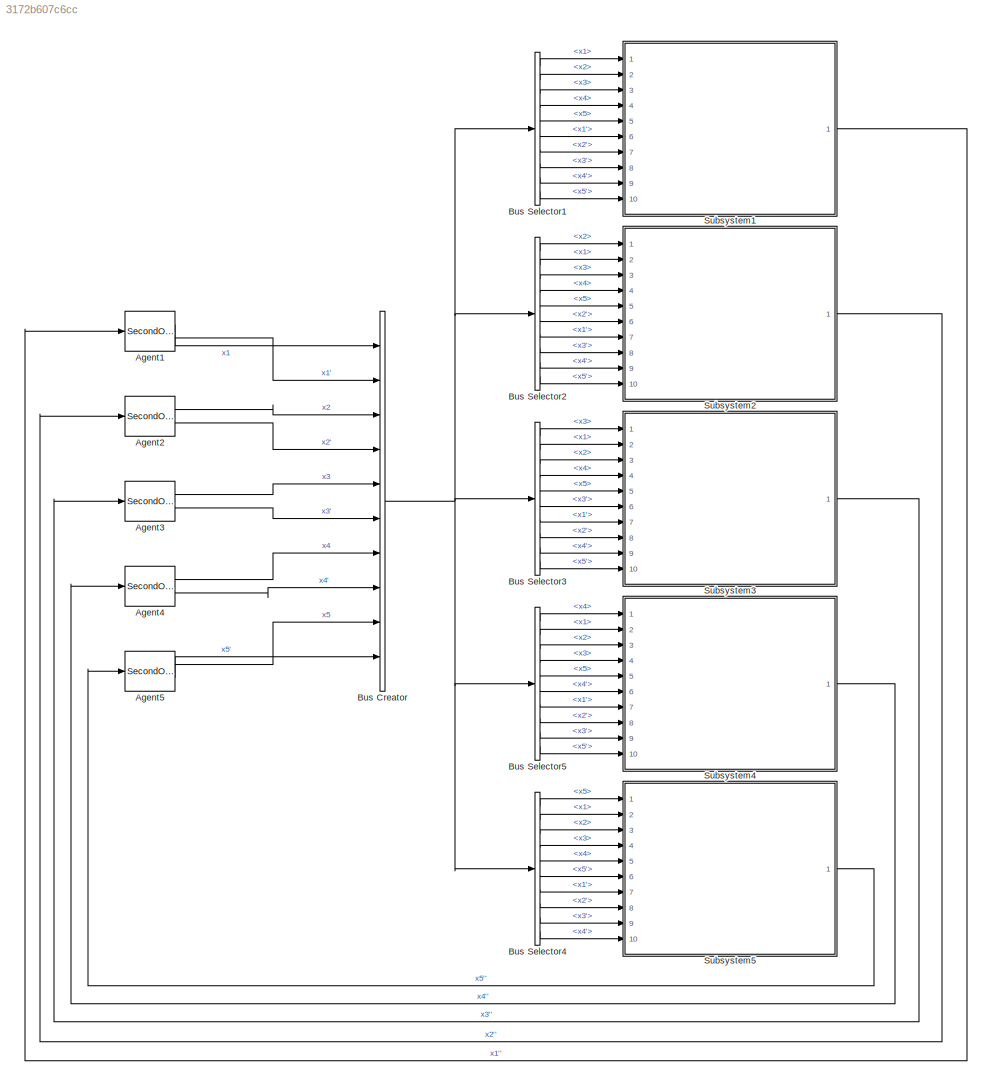
MODEL slx_3172b607c6cc
KIND model
CONFIG AbsTol = auto
CONFIG EnableMultiTasking = off
CONFIG FixedStep = auto
CONFIG MaxStep = auto
CONFIG MinStep = auto
CONFIG RelTol = 1e-3
CONFIG SampleTimeConstraint = Unconstrained
CONFIG Solver = VariableStepAuto
CONFIG SolverName = VariableStepAuto
CONFIG StartTime = 0.0
CONFIG StopTime = 100
BLOCK [SecondOrderIntegrator] Agent1
  ICDXDT = 4
  ICX = 100
  Ports = [1, 2]
BLOCK [SecondOrderIntegrator] Agent2
  ICDXDT = 8
  ICX = 150
  Ports = [1, 2]
BLOCK [SecondOrderIntegrator] Agent3
  ICDXDT = 15
  ICX = 250
  Ports = [1, 2]
BLOCK [SecondOrderIntegrator] Agent4
  ICDXDT = 10
  ICX = 200
  Ports = [1, 2]
BLOCK [SecondOrderIntegrator] Agent5
  ICDXDT = 7
  ICX = 300
  Ports = [1, 2]
BLOCK [BusCreator] Bus Creator
  DisplayOption = bar
  InheritFromInputs = on
  Inputs = 10
  Ports = [10, 1]
BLOCK [BusSelector] Bus Selector1
  OutputAsBus = off
  OutputSignals = x1,x2,x3,x4,x5,x1',x2',x3',x4',x5'
  Ports = [1, 10]
BLOCK [BusSelector] Bus Selector2
  OutputAsBus = off
  OutputSignals = x2,x1,x3,x4,x5,x2',x1',x3',x4',x5'
  Ports = [1, 10]
BLOCK [BusSelector] Bus Selector3
  OutputAsBus = off
  OutputSignals = x3,x1,x2,x4,x5,x3',x1',x2',x4',x5'
  Ports = [1, 10]
BLOCK [BusSelector] Bus Selector4
  OutputAsBus = off
  OutputSignals = x5,x1,x2,x3,x4,x5',x1',x2',x3',x4'
  Ports = [1, 10]
BLOCK [BusSelector] Bus Selector5
  OutputAsBus = off
  OutputSignals = x4,x1,x2,x3,x5,x4',x1',x2',x3',x5'
  Ports = [1, 10]
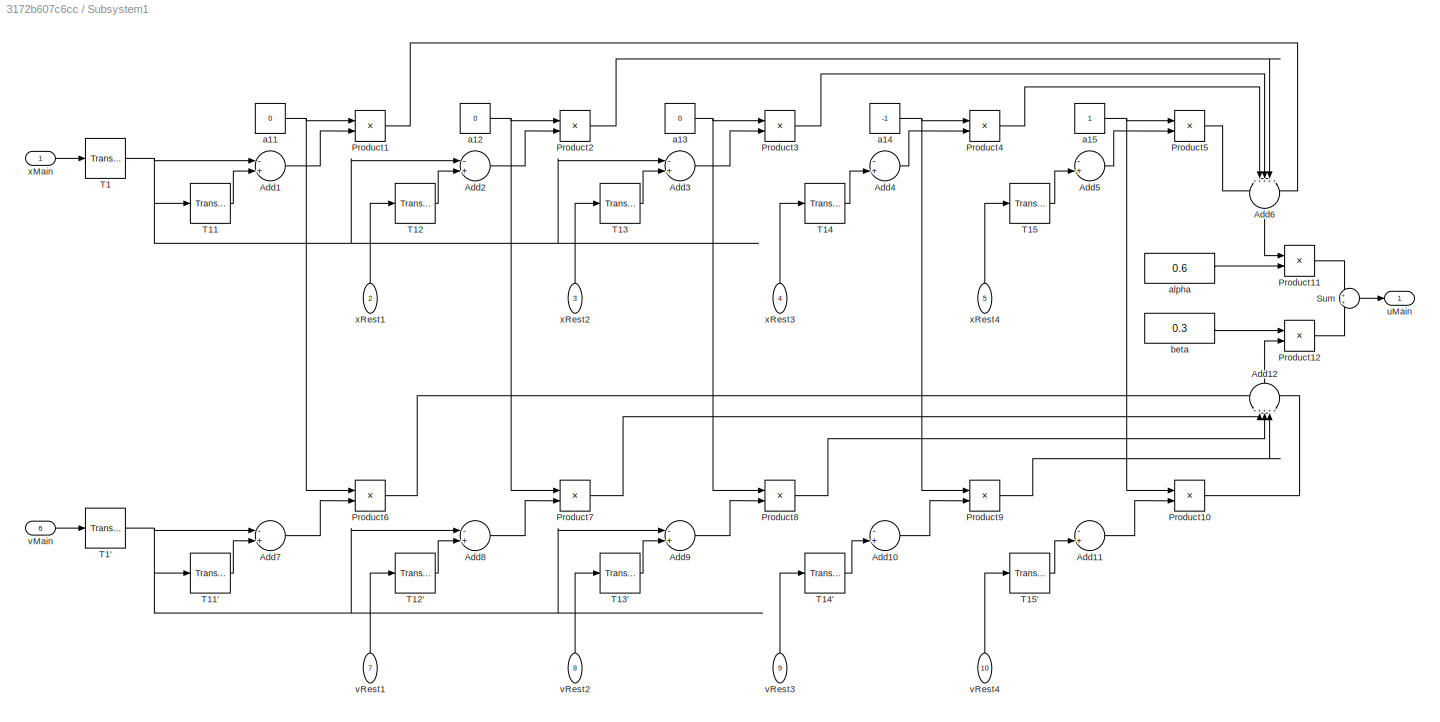
BLOCK [SubSystem] Subsystem1
  Ports = [10, 1]
  RequestExecContextInheritance = off
BLOCK [Sum] Subsystem1/Add1
  InputSameDT = off
  Inputs = -+
  OutDataTypeStr = Inherit: Inherit via internal rule
  Ports = [2, 1]
  SaturateOnIntegerOverflow = off
BLOCK [Sum] Subsystem1/Add10
  InputSameDT = off
  Inputs = -+
  OutDataTypeStr = Inherit: Inherit via internal rule
  Ports = [2, 1]
  SaturateOnIntegerOverflow = off
BLOCK [Sum] Subsystem1/Add11
  InputSameDT = off
  Inputs = -+
  OutDataTypeStr = Inherit: Inherit via internal rule
  Ports = [2, 1]
  SaturateOnIntegerOverflow = off
BLOCK [Sum] Subsystem1/Add12
  IconShape = round
  InputSameDT = off
  Inputs = +++++
  OutDataTypeStr = Inherit: Inherit via internal rule
  Ports = [5, 1]
  SaturateOnIntegerOverflow = off
BLOCK [Sum] Subsystem1/Add2
  InputSameDT = off
  Inputs = -+
  OutDataTypeStr = Inherit: Inherit via internal rule
  Ports = [2, 1]
  SaturateOnIntegerOverflow = off
BLOCK [Sum] Subsystem1/Add3
  InputSameDT = off
  Inputs = -+
  OutDataTypeStr = Inherit: Inherit via internal rule
  Ports = [2, 1]
  SaturateOnIntegerOverflow = off
BLOCK [Sum] Subsystem1/Add4
  InputSameDT = off
  Inputs = -+
  OutDataTypeStr = Inherit: Inherit via internal rule
  Ports = [2, 1]
  SaturateOnIntegerOverflow = off
BLOCK [Sum] Subsystem1/Add5
  InputSameDT = off
  Inputs = -+
  OutDataTypeStr = Inherit: Inherit via internal rule
  Ports = [2, 1]
  SaturateOnIntegerOverflow = off
BLOCK [Sum] Subsystem1/Add6
  IconShape = round
  InputSameDT = off
  Inputs = +++++
  OutDataTypeStr = Inherit: Inherit via internal rule
  Ports = [5, 1]
  SaturateOnIntegerOverflow = off
BLOCK [Sum] Subsystem1/Add7
  InputSameDT = off
  Inputs = -+
  OutDataTypeStr = Inherit: Inherit via internal rule
  Ports = [2, 1]
  SaturateOnIntegerOverflow = off
BLOCK [Sum] Subsystem1/Add8
  InputSameDT = off
  Inputs = -+
  OutDataTypeStr = Inherit: Inherit via internal rule
  Ports = [2, 1]
  SaturateOnIntegerOverflow = off
BLOCK [Sum] Subsystem1/Add9
  InputSameDT = off
  Inputs = -+
  OutDataTypeStr = Inherit: Inherit via internal rule
  Ports = [2, 1]
  SaturateOnIntegerOverflow = off
BLOCK [Product] Subsystem1/Product1
  InputSameDT = off
  OutDataTypeStr = Inherit: Inherit via internal rule
  Ports = [2, 1]
  RndMeth = Floor
  SaturateOnIntegerOverflow = off
BLOCK [Product] Subsystem1/Product10
  InputSameDT = off
  OutDataTypeStr = Inherit: Inherit via internal rule
  Ports = [2, 1]
  RndMeth = Floor
  SaturateOnIntegerOverflow = off
BLOCK [Product] Subsystem1/Product11
  InputSameDT = off
  OutDataTypeStr = Inherit: Inherit via internal rule
  Ports = [2, 1]
  RndMeth = Floor
  SaturateOnIntegerOverflow = off
BLOCK [Product] Subsystem1/Product12
  InputSameDT = off
  OutDataTypeStr = Inherit: Inherit via internal rule
  Ports = [2, 1]
  RndMeth = Floor
  SaturateOnIntegerOverflow = off
BLOCK [Product] Subsystem1/Product2
  InputSameDT = off
  OutDataTypeStr = Inherit: Inherit via internal rule
  Ports = [2, 1]
  RndMeth = Floor
  SaturateOnIntegerOverflow = off
BLOCK [Product] Subsystem1/Product3
  InputSameDT = off
  OutDataTypeStr = Inherit: Inherit via internal rule
  Ports = [2, 1]
  RndMeth = Floor
  SaturateOnIntegerOverflow = off
BLOCK [Product] Subsystem1/Product4
  InputSameDT = off
  OutDataTypeStr = Inherit: Inherit via internal rule
  Ports = [2, 1]
  RndMeth = Floor
  SaturateOnIntegerOverflow = off
BLOCK [Product] Subsystem1/Product5
  InputSameDT = off
  OutDataTypeStr = Inherit: Inherit via internal rule
  Ports = [2, 1]
  RndMeth = Floor
  SaturateOnIntegerOverflow = off
BLOCK [Product] Subsystem1/Product6
  InputSameDT = off
  OutDataTypeStr = Inherit: Inherit via internal rule
  Ports = [2, 1]
  RndMeth = Floor
  SaturateOnIntegerOverflow = off
BLOCK [Product] Subsystem1/Product7
  InputSameDT = off
  OutDataTypeStr = Inherit: Inherit via internal rule
  Ports = [2, 1]
  RndMeth = Floor
  SaturateOnIntegerOverflow = off
BLOCK [Product] Subsystem1/Product8
  InputSameDT = off
  OutDataTypeStr = Inherit: Inherit via internal rule
  Ports = [2, 1]
  RndMeth = Floor
  SaturateOnIntegerOverflow = off
BLOCK [Product] Subsystem1/Product9
  InputSameDT = off
  OutDataTypeStr = Inherit: Inherit via internal rule
  Ports = [2, 1]
  RndMeth = Floor
  SaturateOnIntegerOverflow = off
BLOCK [Sum] Subsystem1/Sum
  IconShape = round
  InputSameDT = off
  OutDataTypeStr = Inherit: Inherit via internal rule
  Ports = [2, 1]
  SaturateOnIntegerOverflow = off
BLOCK [TransportDelay] Subsystem1/T1
  DelayTime = 0
  Ports = [1, 1]
BLOCK [TransportDelay] Subsystem1/T1'
  DelayTime = 0
  Ports = [1, 1]
BLOCK [TransportDelay] Subsystem1/T11
  DelayTime = 0
  Ports = [1, 1]
BLOCK [TransportDelay] Subsystem1/T11'
  DelayTime = 0
  Ports = [1, 1]
BLOCK [TransportDelay] Subsystem1/T12
  DelayTime = 0
  Ports = [1, 1]
BLOCK [TransportDelay] Subsystem1/T12'
  DelayTime = 0
  Ports = [1, 1]
BLOCK [TransportDelay] Subsystem1/T13
  DelayTime = 0
  Ports = [1, 1]
BLOCK [TransportDelay] Subsystem1/T13'
  DelayTime = 0
  Ports = [1, 1]
BLOCK [TransportDelay] Subsystem1/T14
  DelayTime = 0
  Ports = [1, 1]
BLOCK [TransportDelay] Subsystem1/T14'
  DelayTime = 0
  Ports = [1, 1]
BLOCK [TransportDelay] Subsystem1/T15
  DelayTime = 0
  Ports = [1, 1]
BLOCK [TransportDelay] Subsystem1/T15'
  DelayTime = 0
  Ports = [1, 1]
BLOCK [Constant] Subsystem1/a11
  Value = 0
BLOCK [Constant] Subsystem1/a12
  Value = 0
BLOCK [Constant] Subsystem1/a13
  Value = 0
BLOCK [Constant] Subsystem1/a14
  Value = -1
BLOCK [Constant] Subsystem1/a15
BLOCK [Constant] Subsystem1/alpha
  Value = 0.6
BLOCK [Constant] Subsystem1/beta
  Value = 0.3
BLOCK [Outport] Subsystem1/uMain
  IconDisplay = Port number
BLOCK [Inport] Subsystem1/vMain
  IconDisplay = Port number
  Port = 6
BLOCK [Inport] Subsystem1/vRest1
  IconDisplay = Port number
  Port = 7
BLOCK [Inport] Subsystem1/vRest2
  IconDisplay = Port number
  Port = 8
BLOCK [Inport] Subsystem1/vRest3
  IconDisplay = Port number
  Port = 9
BLOCK [Inport] Subsystem1/vRest4
  IconDisplay = Port number
  Port = 10
BLOCK [Inport] Subsystem1/xMain
  IconDisplay = Port number
BLOCK [Inport] Subsystem1/xRest1
  IconDisplay = Port number
  Port = 2
BLOCK [Inport] Subsystem1/xRest2
  IconDisplay = Port number
  Port = 3
BLOCK [Inport] Subsystem1/xRest3
  IconDisplay = Port number
  Port = 4
BLOCK [Inport] Subsystem1/xRest4
  IconDisplay = Port number
  Port = 5
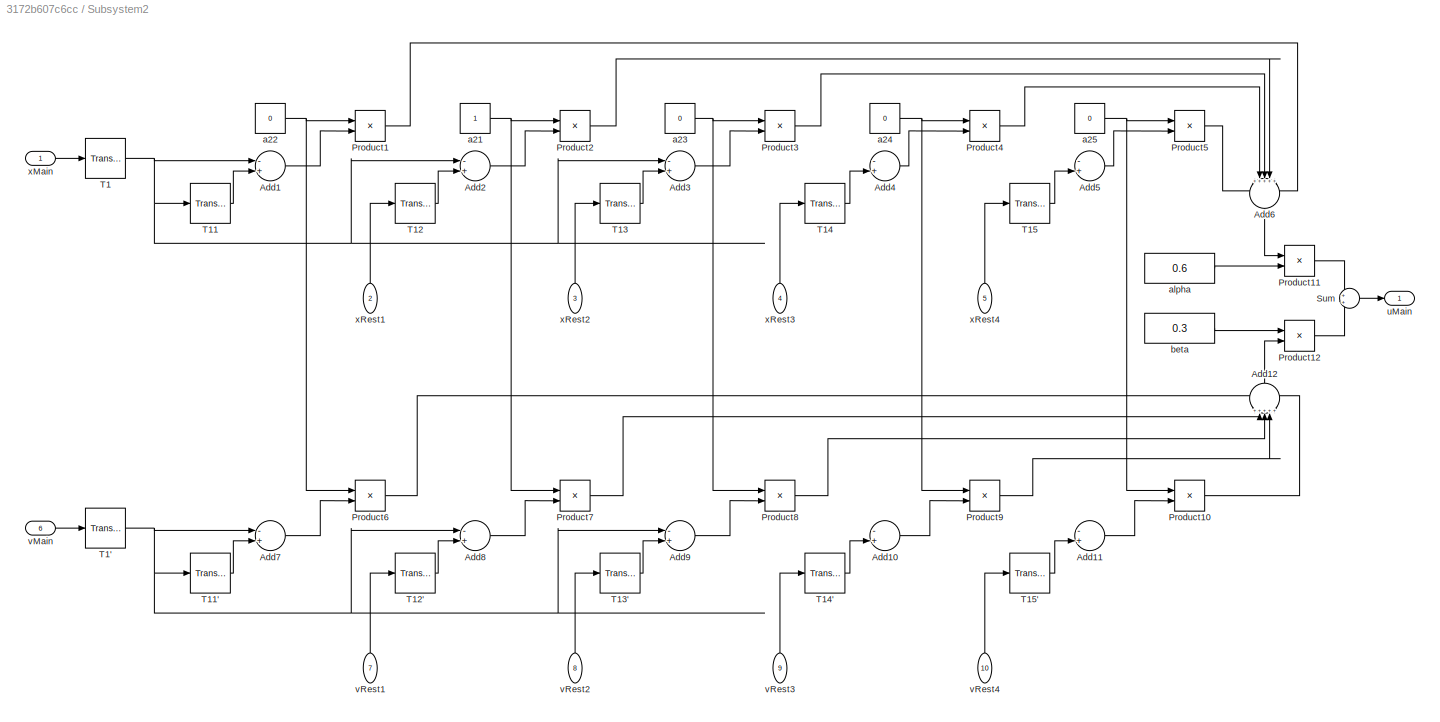
BLOCK [SubSystem] Subsystem2
  Ports = [10, 1]
  RequestExecContextInheritance = off
BLOCK [Sum] Subsystem2/Add1
  InputSameDT = off
  Inputs = -+
  OutDataTypeStr = Inherit: Inherit via internal rule
  Ports = [2, 1]
  SaturateOnIntegerOverflow = off
BLOCK [Sum] Subsystem2/Add10
  InputSameDT = off
  Inputs = -+
  OutDataTypeStr = Inherit: Inherit via internal rule
  Ports = [2, 1]
  SaturateOnIntegerOverflow = off
BLOCK [Sum] Subsystem2/Add11
  InputSameDT = off
  Inputs = -+
  OutDataTypeStr = Inherit: Inherit via internal rule
  Ports = [2, 1]
  SaturateOnIntegerOverflow = off
BLOCK [Sum] Subsystem2/Add12
  IconShape = round
  InputSameDT = off
  Inputs = +++++
  OutDataTypeStr = Inherit: Inherit via internal rule
  Ports = [5, 1]
  SaturateOnIntegerOverflow = off
BLOCK [Sum] Subsystem2/Add2
  InputSameDT = off
  Inputs = -+
  OutDataTypeStr = Inherit: Inherit via internal rule
  Ports = [2, 1]
  SaturateOnIntegerOverflow = off
BLOCK [Sum] Subsystem2/Add3
  InputSameDT = off
  Inputs = -+
  OutDataTypeStr = Inherit: Inherit via internal rule
  Ports = [2, 1]
  SaturateOnIntegerOverflow = off
BLOCK [Sum] Subsystem2/Add4
  InputSameDT = off
  Inputs = -+
  OutDataTypeStr = Inherit: Inherit via internal rule
  Ports = [2, 1]
  SaturateOnIntegerOverflow = off
BLOCK [Sum] Subsystem2/Add5
  InputSameDT = off
  Inputs = -+
  OutDataTypeStr = Inherit: Inherit via internal rule
  Ports = [2, 1]
  SaturateOnIntegerOverflow = off
BLOCK [Sum] Subsystem2/Add6
  IconShape = round
  InputSameDT = off
  Inputs = +++++
  OutDataTypeStr = Inherit: Inherit via internal rule
  Ports = [5, 1]
  SaturateOnIntegerOverflow = off
BLOCK [Sum] Subsystem2/Add7
  InputSameDT = off
  Inputs = -+
  OutDataTypeStr = Inherit: Inherit via internal rule
  Ports = [2, 1]
  SaturateOnIntegerOverflow = off
BLOCK [Sum] Subsystem2/Add8
  InputSameDT = off
  Inputs = -+
  OutDataTypeStr = Inherit: Inherit via internal rule
  Ports = [2, 1]
  SaturateOnIntegerOverflow = off
BLOCK [Sum] Subsystem2/Add9
  InputSameDT = off
  Inputs = -+
  OutDataTypeStr = Inherit: Inherit via internal rule
  Ports = [2, 1]
  SaturateOnIntegerOverflow = off
BLOCK [Product] Subsystem2/Product1
  InputSameDT = off
  OutDataTypeStr = Inherit: Inherit via internal rule
  Ports = [2, 1]
  RndMeth = Floor
  SaturateOnIntegerOverflow = off
BLOCK [Product] Subsystem2/Product10
  InputSameDT = off
  OutDataTypeStr = Inherit: Inherit via internal rule
  Ports = [2, 1]
  RndMeth = Floor
  SaturateOnIntegerOverflow = off
BLOCK [Product] Subsystem2/Product11
  InputSameDT = off
  OutDataTypeStr = Inherit: Inherit via internal rule
  Ports = [2, 1]
  RndMeth = Floor
  SaturateOnIntegerOverflow = off
BLOCK [Product] Subsystem2/Product12
  InputSameDT = off
  OutDataTypeStr = Inherit: Inherit via internal rule
  Ports = [2, 1]
  RndMeth = Floor
  SaturateOnIntegerOverflow = off
BLOCK [Product] Subsystem2/Product2
  InputSameDT = off
  OutDataTypeStr = Inherit: Inherit via internal rule
  Ports = [2, 1]
  RndMeth = Floor
  SaturateOnIntegerOverflow = off
BLOCK [Product] Subsystem2/Product3
  InputSameDT = off
  OutDataTypeStr = Inherit: Inherit via internal rule
  Ports = [2, 1]
  RndMeth = Floor
  SaturateOnIntegerOverflow = off
BLOCK [Product] Subsystem2/Product4
  InputSameDT = off
  OutDataTypeStr = Inherit: Inherit via internal rule
  Ports = [2, 1]
  RndMeth = Floor
  SaturateOnIntegerOverflow = off
BLOCK [Product] Subsystem2/Product5
  InputSameDT = off
  OutDataTypeStr = Inherit: Inherit via internal rule
  Ports = [2, 1]
  RndMeth = Floor
  SaturateOnIntegerOverflow = off
BLOCK [Product] Subsystem2/Product6
  InputSameDT = off
  OutDataTypeStr = Inherit: Inherit via internal rule
  Ports = [2, 1]
  RndMeth = Floor
  SaturateOnIntegerOverflow = off
BLOCK [Product] Subsystem2/Product7
  InputSameDT = off
  OutDataTypeStr = Inherit: Inherit via internal rule
  Ports = [2, 1]
  RndMeth = Floor
  SaturateOnIntegerOverflow = off
BLOCK [Product] Subsystem2/Product8
  InputSameDT = off
  OutDataTypeStr = Inherit: Inherit via internal rule
  Ports = [2, 1]
  RndMeth = Floor
  SaturateOnIntegerOverflow = off
BLOCK [Product] Subsystem2/Product9
  InputSameDT = off
  OutDataTypeStr = Inherit: Inherit via internal rule
  Ports = [2, 1]
  RndMeth = Floor
  SaturateOnIntegerOverflow = off
BLOCK [Sum] Subsystem2/Sum
  IconShape = round
  InputSameDT = off
  OutDataTypeStr = Inherit: Inherit via internal rule
  Ports = [2, 1]
  SaturateOnIntegerOverflow = off
BLOCK [TransportDelay] Subsystem2/T1
  DelayTime = 0
  Ports = [1, 1]
BLOCK [TransportDelay] Subsystem2/T1'
  DelayTime = 0
  Ports = [1, 1]
BLOCK [TransportDelay] Subsystem2/T11
  DelayTime = 0
  Ports = [1, 1]
BLOCK [TransportDelay] Subsystem2/T11'
  DelayTime = 0
  Ports = [1, 1]
BLOCK [TransportDelay] Subsystem2/T12
  DelayTime = 0
  Ports = [1, 1]
BLOCK [TransportDelay] Subsystem2/T12'
  DelayTime = 0
  Ports = [1, 1]
BLOCK [TransportDelay] Subsystem2/T13
  DelayTime = 0
  Ports = [1, 1]
BLOCK [TransportDelay] Subsystem2/T13'
  DelayTime = 0
  Ports = [1, 1]
BLOCK [TransportDelay] Subsystem2/T14
  DelayTime = 0
  Ports = [1, 1]
BLOCK [TransportDelay] Subsystem2/T14'
  DelayTime = 0
  Ports = [1, 1]
BLOCK [TransportDelay] Subsystem2/T15
  DelayTime = 0
  Ports = [1, 1]
BLOCK [TransportDelay] Subsystem2/T15'
  DelayTime = 0
  Ports = [1, 1]
BLOCK [Constant] Subsystem2/a21
BLOCK [Constant] Subsystem2/a22
  Value = 0
BLOCK [Constant] Subsystem2/a23
  Value = 0
BLOCK [Constant] Subsystem2/a24
  Value = 0
BLOCK [Constant] Subsystem2/a25
  Value = 0
BLOCK [Constant] Subsystem2/alpha
  Value = 0.6
BLOCK [Constant] Subsystem2/beta
  Value = 0.3
BLOCK [Outport] Subsystem2/uMain
  IconDisplay = Port number
BLOCK [Inport] Subsystem2/vMain
  IconDisplay = Port number
  Port = 6
BLOCK [Inport] Subsystem2/vRest1
  IconDisplay = Port number
  Port = 7
BLOCK [Inport] Subsystem2/vRest2
  IconDisplay = Port number
  Port = 8
BLOCK [Inport] Subsystem2/vRest3
  IconDisplay = Port number
  Port = 9
BLOCK [Inport] Subsystem2/vRest4
  IconDisplay = Port number
  Port = 10
BLOCK [Inport] Subsystem2/xMain
  IconDisplay = Port number
BLOCK [Inport] Subsystem2/xRest1
  IconDisplay = Port number
  Port = 2
BLOCK [Inport] Subsystem2/xRest2
  IconDisplay = Port number
  Port = 3
BLOCK [Inport] Subsystem2/xRest3
  IconDisplay = Port number
  Port = 4
BLOCK [Inport] Subsystem2/xRest4
  IconDisplay = Port number
  Port = 5
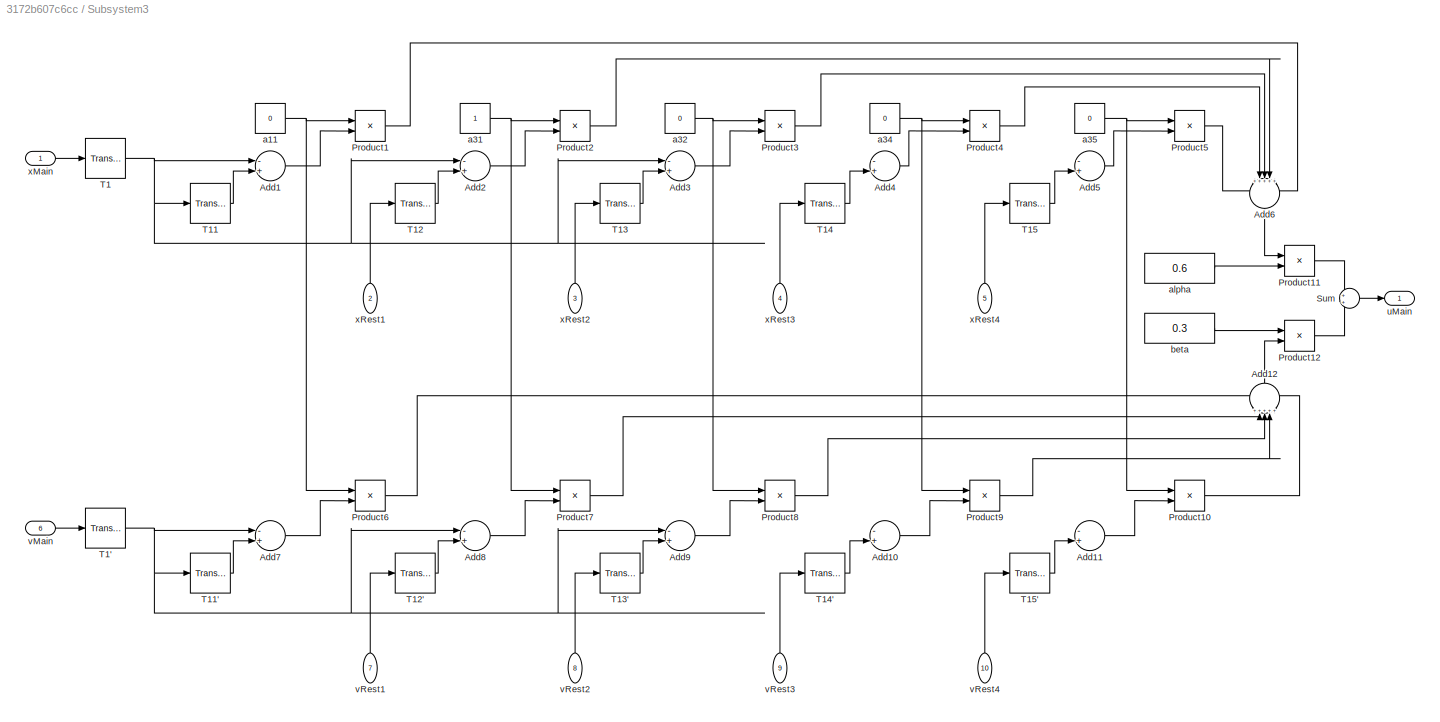
BLOCK [SubSystem] Subsystem3
  Ports = [10, 1]
  RequestExecContextInheritance = off
BLOCK [Sum] Subsystem3/Add1
  InputSameDT = off
  Inputs = -+
  OutDataTypeStr = Inherit: Inherit via internal rule
  Ports = [2, 1]
  SaturateOnIntegerOverflow = off
BLOCK [Sum] Subsystem3/Add10
  InputSameDT = off
  Inputs = -+
  OutDataTypeStr = Inherit: Inherit via internal rule
  Ports = [2, 1]
  SaturateOnIntegerOverflow = off
BLOCK [Sum] Subsystem3/Add11
  InputSameDT = off
  Inputs = -+
  OutDataTypeStr = Inherit: Inherit via internal rule
  Ports = [2, 1]
  SaturateOnIntegerOverflow = off
BLOCK [Sum] Subsystem3/Add12
  IconShape = round
  InputSameDT = off
  Inputs = +++++
  OutDataTypeStr = Inherit: Inherit via internal rule
  Ports = [5, 1]
  SaturateOnIntegerOverflow = off
BLOCK [Sum] Subsystem3/Add2
  InputSameDT = off
  Inputs = -+
  OutDataTypeStr = Inherit: Inherit via internal rule
  Ports = [2, 1]
  SaturateOnIntegerOverflow = off
BLOCK [Sum] Subsystem3/Add3
  InputSameDT = off
  Inputs = -+
  OutDataTypeStr = Inherit: Inherit via internal rule
  Ports = [2, 1]
  SaturateOnIntegerOverflow = off
BLOCK [Sum] Subsystem3/Add4
  InputSameDT = off
  Inputs = -+
  OutDataTypeStr = Inherit: Inherit via internal rule
  Ports = [2, 1]
  SaturateOnIntegerOverflow = off
BLOCK [Sum] Subsystem3/Add5
  InputSameDT = off
  Inputs = -+
  OutDataTypeStr = Inherit: Inherit via internal rule
  Ports = [2, 1]
  SaturateOnIntegerOverflow = off
BLOCK [Sum] Subsystem3/Add6
  IconShape = round
  InputSameDT = off
  Inputs = +++++
  OutDataTypeStr = Inherit: Inherit via internal rule
  Ports = [5, 1]
  SaturateOnIntegerOverflow = off
BLOCK [Sum] Subsystem3/Add7
  InputSameDT = off
  Inputs = -+
  OutDataTypeStr = Inherit: Inherit via internal rule
  Ports = [2, 1]
  SaturateOnIntegerOverflow = off
BLOCK [Sum] Subsystem3/Add8
  InputSameDT = off
  Inputs = -+
  OutDataTypeStr = Inherit: Inherit via internal rule
  Ports = [2, 1]
  SaturateOnIntegerOverflow = off
BLOCK [Sum] Subsystem3/Add9
  InputSameDT = off
  Inputs = -+
  OutDataTypeStr = Inherit: Inherit via internal rule
  Ports = [2, 1]
  SaturateOnIntegerOverflow = off
BLOCK [Product] Subsystem3/Product1
  InputSameDT = off
  OutDataTypeStr = Inherit: Inherit via internal rule
  Ports = [2, 1]
  RndMeth = Floor
  SaturateOnIntegerOverflow = off
BLOCK [Product] Subsystem3/Product10
  InputSameDT = off
  OutDataTypeStr = Inherit: Inherit via internal rule
  Ports = [2, 1]
  RndMeth = Floor
  SaturateOnIntegerOverflow = off
BLOCK [Product] Subsystem3/Product11
  InputSameDT = off
  OutDataTypeStr = Inherit: Inherit via internal rule
  Ports = [2, 1]
  RndMeth = Floor
  SaturateOnIntegerOverflow = off
BLOCK [Product] Subsystem3/Product12
  InputSameDT = off
  OutDataTypeStr = Inherit: Inherit via internal rule
  Ports = [2, 1]
  RndMeth = Floor
  SaturateOnIntegerOverflow = off
BLOCK [Product] Subsystem3/Product2
  InputSameDT = off
  OutDataTypeStr = Inherit: Inherit via internal rule
  Ports = [2, 1]
  RndMeth = Floor
  SaturateOnIntegerOverflow = off
BLOCK [Product] Subsystem3/Product3
  InputSameDT = off
  OutDataTypeStr = Inherit: Inherit via internal rule
  Ports = [2, 1]
  RndMeth = Floor
  SaturateOnIntegerOverflow = off
BLOCK [Product] Subsystem3/Product4
  InputSameDT = off
  OutDataTypeStr = Inherit: Inherit via internal rule
  Ports = [2, 1]
  RndMeth = Floor
  SaturateOnIntegerOverflow = off
BLOCK [Product] Subsystem3/Product5
  InputSameDT = off
  OutDataTypeStr = Inherit: Inherit via internal rule
  Ports = [2, 1]
  RndMeth = Floor
  SaturateOnIntegerOverflow = off
BLOCK [Product] Subsystem3/Product6
  InputSameDT = off
  OutDataTypeStr = Inherit: Inherit via internal rule
  Ports = [2, 1]
  RndMeth = Floor
  SaturateOnIntegerOverflow = off
BLOCK [Product] Subsystem3/Product7
  InputSameDT = off
  OutDataTypeStr = Inherit: Inherit via internal rule
  Ports = [2, 1]
  RndMeth = Floor
  SaturateOnIntegerOverflow = off
BLOCK [Product] Subsystem3/Product8
  InputSameDT = off
  OutDataTypeStr = Inherit: Inherit via internal rule
  Ports = [2, 1]
  RndMeth = Floor
  SaturateOnIntegerOverflow = off
BLOCK [Product] Subsystem3/Product9
  InputSameDT = off
  OutDataTypeStr = Inherit: Inherit via internal rule
  Ports = [2, 1]
  RndMeth = Floor
  SaturateOnIntegerOverflow = off
BLOCK [Sum] Subsystem3/Sum
  IconShape = round
  InputSameDT = off
  OutDataTypeStr = Inherit: Inherit via internal rule
  Ports = [2, 1]
  SaturateOnIntegerOverflow = off
BLOCK [TransportDelay] Subsystem3/T1
  DelayTime = 0
  Ports = [1, 1]
BLOCK [TransportDelay] Subsystem3/T1'
  DelayTime = 0
  Ports = [1, 1]
BLOCK [TransportDelay] Subsystem3/T11
  DelayTime = 0
  Ports = [1, 1]
BLOCK [TransportDelay] Subsystem3/T11'
  DelayTime = 0
  Ports = [1, 1]
BLOCK [TransportDelay] Subsystem3/T12
  DelayTime = 0
  Ports = [1, 1]
BLOCK [TransportDelay] Subsystem3/T12'
  DelayTime = 0
  Ports = [1, 1]
BLOCK [TransportDelay] Subsystem3/T13
  DelayTime = 0
  Ports = [1, 1]
BLOCK [TransportDelay] Subsystem3/T13'
  DelayTime = 0
  Ports = [1, 1]
BLOCK [TransportDelay] Subsystem3/T14
  DelayTime = 0
  Ports = [1, 1]
BLOCK [TransportDelay] Subsystem3/T14'
  DelayTime = 0
  Ports = [1, 1]
BLOCK [TransportDelay] Subsystem3/T15
  DelayTime = 0
  Ports = [1, 1]
BLOCK [TransportDelay] Subsystem3/T15'
  DelayTime = 0
  Ports = [1, 1]
BLOCK [Constant] Subsystem3/a11
  Value = 0
BLOCK [Constant] Subsystem3/a31
BLOCK [Constant] Subsystem3/a32
  Value = 0
BLOCK [Constant] Subsystem3/a34
  Value = 0
BLOCK [Constant] Subsystem3/a35
  Value = 0
BLOCK [Constant] Subsystem3/alpha
  Value = 0.6
BLOCK [Constant] Subsystem3/beta
  Value = 0.3
BLOCK [Outport] Subsystem3/uMain
  IconDisplay = Port number
BLOCK [Inport] Subsystem3/vMain
  IconDisplay = Port number
  Port = 6
BLOCK [Inport] Subsystem3/vRest1
  IconDisplay = Port number
  Port = 7
BLOCK [Inport] Subsystem3/vRest2
  IconDisplay = Port number
  Port = 8
BLOCK [Inport] Subsystem3/vRest3
  IconDisplay = Port number
  Port = 9
BLOCK [Inport] Subsystem3/vRest4
  IconDisplay = Port number
  Port = 10
BLOCK [Inport] Subsystem3/xMain
  IconDisplay = Port number
BLOCK [Inport] Subsystem3/xRest1
  IconDisplay = Port number
  Port = 2
BLOCK [Inport] Subsystem3/xRest2
  IconDisplay = Port number
  Port = 3
BLOCK [Inport] Subsystem3/xRest3
  IconDisplay = Port number
  Port = 4
BLOCK [Inport] Subsystem3/xRest4
  IconDisplay = Port number
  Port = 5
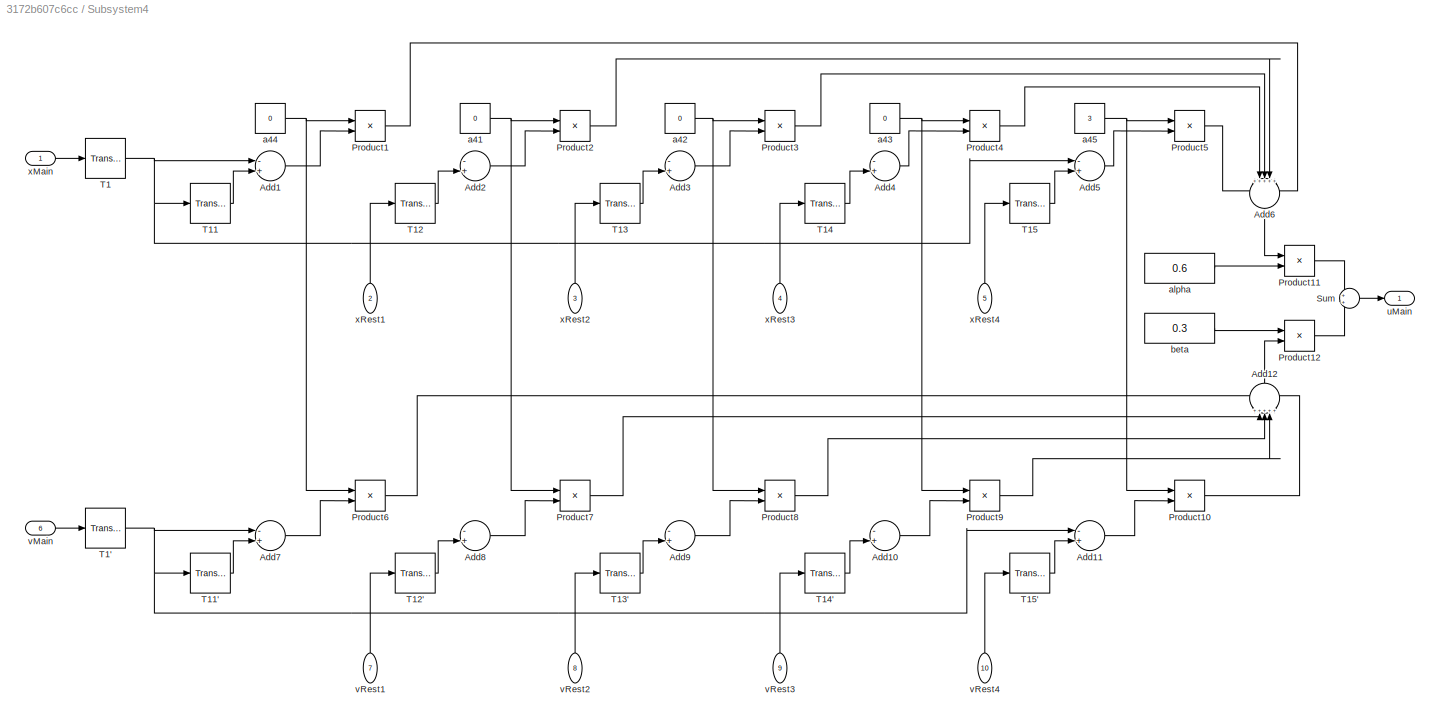
BLOCK [SubSystem] Subsystem4
  Ports = [10, 1]
  RequestExecContextInheritance = off
BLOCK [Sum] Subsystem4/Add1
  InputSameDT = off
  Inputs = -+
  OutDataTypeStr = Inherit: Inherit via internal rule
  Ports = [2, 1]
  SaturateOnIntegerOverflow = off
BLOCK [Sum] Subsystem4/Add10
  InputSameDT = off
  Inputs = -+
  OutDataTypeStr = Inherit: Inherit via internal rule
  Ports = [2, 1]
  SaturateOnIntegerOverflow = off
BLOCK [Sum] Subsystem4/Add11
  InputSameDT = off
  Inputs = -+
  OutDataTypeStr = Inherit: Inherit via internal rule
  Ports = [2, 1]
  SaturateOnIntegerOverflow = off
BLOCK [Sum] Subsystem4/Add12
  IconShape = round
  InputSameDT = off
  Inputs = +++++
  OutDataTypeStr = Inherit: Inherit via internal rule
  Ports = [5, 1]
  SaturateOnIntegerOverflow = off
BLOCK [Sum] Subsystem4/Add2
  InputSameDT = off
  Inputs = -+
  OutDataTypeStr = Inherit: Inherit via internal rule
  Ports = [2, 1]
  SaturateOnIntegerOverflow = off
BLOCK [Sum] Subsystem4/Add3
  InputSameDT = off
  Inputs = -+
  OutDataTypeStr = Inherit: Inherit via internal rule
  Ports = [2, 1]
  SaturateOnIntegerOverflow = off
BLOCK [Sum] Subsystem4/Add4
  InputSameDT = off
  Inputs = -+
  OutDataTypeStr = Inherit: Inherit via internal rule
  Ports = [2, 1]
  SaturateOnIntegerOverflow = off
BLOCK [Sum] Subsystem4/Add5
  InputSameDT = off
  Inputs = -+
  OutDataTypeStr = Inherit: Inherit via internal rule
  Ports = [2, 1]
  SaturateOnIntegerOverflow = off
BLOCK [Sum] Subsystem4/Add6
  IconShape = round
  InputSameDT = off
  Inputs = +++++
  OutDataTypeStr = Inherit: Inherit via internal rule
  Ports = [5, 1]
  SaturateOnIntegerOverflow = off
BLOCK [Sum] Subsystem4/Add7
  InputSameDT = off
  Inputs = -+
  OutDataTypeStr = Inherit: Inherit via internal rule
  Ports = [2, 1]
  SaturateOnIntegerOverflow = off
BLOCK [Sum] Subsystem4/Add8
  InputSameDT = off
  Inputs = -+
  OutDataTypeStr = Inherit: Inherit via internal rule
  Ports = [2, 1]
  SaturateOnIntegerOverflow = off
BLOCK [Sum] Subsystem4/Add9
  InputSameDT = off
  Inputs = -+
  OutDataTypeStr = Inherit: Inherit via internal rule
  Ports = [2, 1]
  SaturateOnIntegerOverflow = off
BLOCK [Product] Subsystem4/Product1
  InputSameDT = off
  OutDataTypeStr = Inherit: Inherit via internal rule
  Ports = [2, 1]
  RndMeth = Floor
  SaturateOnIntegerOverflow = off
BLOCK [Product] Subsystem4/Product10
  InputSameDT = off
  OutDataTypeStr = Inherit: Inherit via internal rule
  Ports = [2, 1]
  RndMeth = Floor
  SaturateOnIntegerOverflow = off
BLOCK [Product] Subsystem4/Product11
  InputSameDT = off
  OutDataTypeStr = Inherit: Inherit via internal rule
  Ports = [2, 1]
  RndMeth = Floor
  SaturateOnIntegerOverflow = off
BLOCK [Product] Subsystem4/Product12
  InputSameDT = off
  OutDataTypeStr = Inherit: Inherit via internal rule
  Ports = [2, 1]
  RndMeth = Floor
  SaturateOnIntegerOverflow = off
BLOCK [Product] Subsystem4/Product2
  InputSameDT = off
  OutDataTypeStr = Inherit: Inherit via internal rule
  Ports = [2, 1]
  RndMeth = Floor
  SaturateOnIntegerOverflow = off
BLOCK [Product] Subsystem4/Product3
  InputSameDT = off
  OutDataTypeStr = Inherit: Inherit via internal rule
  Ports = [2, 1]
  RndMeth = Floor
  SaturateOnIntegerOverflow = off
BLOCK [Product] Subsystem4/Product4
  InputSameDT = off
  OutDataTypeStr = Inherit: Inherit via internal rule
  Ports = [2, 1]
  RndMeth = Floor
  SaturateOnIntegerOverflow = off
BLOCK [Product] Subsystem4/Product5
  InputSameDT = off
  OutDataTypeStr = Inherit: Inherit via internal rule
  Ports = [2, 1]
  RndMeth = Floor
  SaturateOnIntegerOverflow = off
BLOCK [Product] Subsystem4/Product6
  InputSameDT = off
  OutDataTypeStr = Inherit: Inherit via internal rule
  Ports = [2, 1]
  RndMeth = Floor
  SaturateOnIntegerOverflow = off
BLOCK [Product] Subsystem4/Product7
  InputSameDT = off
  OutDataTypeStr = Inherit: Inherit via internal rule
  Ports = [2, 1]
  RndMeth = Floor
  SaturateOnIntegerOverflow = off
BLOCK [Product] Subsystem4/Product8
  InputSameDT = off
  OutDataTypeStr = Inherit: Inherit via internal rule
  Ports = [2, 1]
  RndMeth = Floor
  SaturateOnIntegerOverflow = off
BLOCK [Product] Subsystem4/Product9
  InputSameDT = off
  OutDataTypeStr = Inherit: Inherit via internal rule
  Ports = [2, 1]
  RndMeth = Floor
  SaturateOnIntegerOverflow = off
BLOCK [Sum] Subsystem4/Sum
  IconShape = round
  InputSameDT = off
  OutDataTypeStr = Inherit: Inherit via internal rule
  Ports = [2, 1]
  SaturateOnIntegerOverflow = off
BLOCK [TransportDelay] Subsystem4/T1
  DelayTime = 0
  Ports = [1, 1]
BLOCK [TransportDelay] Subsystem4/T1'
  DelayTime = 0
  Ports = [1, 1]
BLOCK [TransportDelay] Subsystem4/T11
  DelayTime = 0
  Ports = [1, 1]
BLOCK [TransportDelay] Subsystem4/T11'
  DelayTime = 0
  Ports = [1, 1]
BLOCK [TransportDelay] Subsystem4/T12
  DelayTime = 0
  Ports = [1, 1]
BLOCK [TransportDelay] Subsystem4/T12'
  DelayTime = 0
  Ports = [1, 1]
BLOCK [TransportDelay] Subsystem4/T13
  DelayTime = 0
  Ports = [1, 1]
BLOCK [TransportDelay] Subsystem4/T13'
  DelayTime = 0
  Ports = [1, 1]
BLOCK [TransportDelay] Subsystem4/T14
  DelayTime = 0
  Ports = [1, 1]
BLOCK [TransportDelay] Subsystem4/T14'
  DelayTime = 0
  Ports = [1, 1]
BLOCK [TransportDelay] Subsystem4/T15
  DelayTime = 0
  Ports = [1, 1]
BLOCK [TransportDelay] Subsystem4/T15'
  DelayTime = 0
  Ports = [1, 1]
BLOCK [Constant] Subsystem4/a41
  Value = 0
BLOCK [Constant] Subsystem4/a42
  Value = 0
BLOCK [Constant] Subsystem4/a43
  Value = 0
BLOCK [Constant] Subsystem4/a44
  Value = 0
BLOCK [Constant] Subsystem4/a45
  Value = 3
BLOCK [Constant] Subsystem4/alpha
  Value = 0.6
BLOCK [Constant] Subsystem4/beta
  Value = 0.3
BLOCK [Outport] Subsystem4/uMain
  IconDisplay = Port number
BLOCK [Inport] Subsystem4/vMain
  IconDisplay = Port number
  Port = 6
BLOCK [Inport] Subsystem4/vRest1
  IconDisplay = Port number
  Port = 7
BLOCK [Inport] Subsystem4/vRest2
  IconDisplay = Port number
  Port = 8
BLOCK [Inport] Subsystem4/vRest3
  IconDisplay = Port number
  Port = 9
BLOCK [Inport] Subsystem4/vRest4
  IconDisplay = Port number
  Port = 10
BLOCK [Inport] Subsystem4/xMain
  IconDisplay = Port number
BLOCK [Inport] Subsystem4/xRest1
  IconDisplay = Port number
  Port = 2
BLOCK [Inport] Subsystem4/xRest2
  IconDisplay = Port number
  Port = 3
BLOCK [Inport] Subsystem4/xRest3
  IconDisplay = Port number
  Port = 4
BLOCK [Inport] Subsystem4/xRest4
  IconDisplay = Port number
  Port = 5
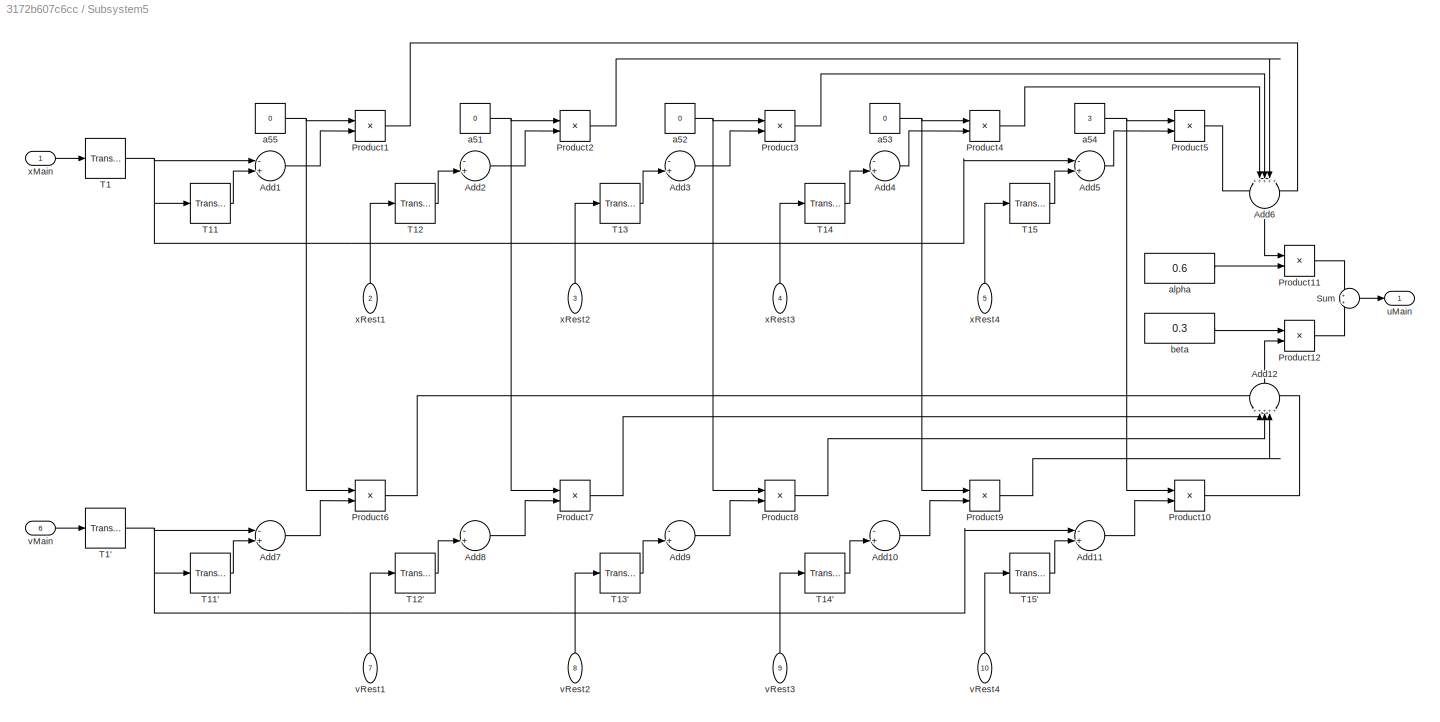
BLOCK [SubSystem] Subsystem5
  Ports = [10, 1]
  RequestExecContextInheritance = off
BLOCK [Sum] Subsystem5/Add1
  InputSameDT = off
  Inputs = -+
  OutDataTypeStr = Inherit: Inherit via internal rule
  Ports = [2, 1]
  SaturateOnIntegerOverflow = off
BLOCK [Sum] Subsystem5/Add10
  InputSameDT = off
  Inputs = -+
  OutDataTypeStr = Inherit: Inherit via internal rule
  Ports = [2, 1]
  SaturateOnIntegerOverflow = off
BLOCK [Sum] Subsystem5/Add11
  InputSameDT = off
  Inputs = -+
  OutDataTypeStr = Inherit: Inherit via internal rule
  Ports = [2, 1]
  SaturateOnIntegerOverflow = off
BLOCK [Sum] Subsystem5/Add12
  IconShape = round
  InputSameDT = off
  Inputs = +++++
  OutDataTypeStr = Inherit: Inherit via internal rule
  Ports = [5, 1]
  SaturateOnIntegerOverflow = off
BLOCK [Sum] Subsystem5/Add2
  InputSameDT = off
  Inputs = -+
  OutDataTypeStr = Inherit: Inherit via internal rule
  Ports = [2, 1]
  SaturateOnIntegerOverflow = off
BLOCK [Sum] Subsystem5/Add3
  InputSameDT = off
  Inputs = -+
  OutDataTypeStr = Inherit: Inherit via internal rule
  Ports = [2, 1]
  SaturateOnIntegerOverflow = off
BLOCK [Sum] Subsystem5/Add4
  InputSameDT = off
  Inputs = -+
  OutDataTypeStr = Inherit: Inherit via internal rule
  Ports = [2, 1]
  SaturateOnIntegerOverflow = off
BLOCK [Sum] Subsystem5/Add5
  InputSameDT = off
  Inputs = -+
  OutDataTypeStr = Inherit: Inherit via internal rule
  Ports = [2, 1]
  SaturateOnIntegerOverflow = off
BLOCK [Sum] Subsystem5/Add6
  IconShape = round
  InputSameDT = off
  Inputs = +++++
  OutDataTypeStr = Inherit: Inherit via internal rule
  Ports = [5, 1]
  SaturateOnIntegerOverflow = off
BLOCK [Sum] Subsystem5/Add7
  InputSameDT = off
  Inputs = -+
  OutDataTypeStr = Inherit: Inherit via internal rule
  Ports = [2, 1]
  SaturateOnIntegerOverflow = off
BLOCK [Sum] Subsystem5/Add8
  InputSameDT = off
  Inputs = -+
  OutDataTypeStr = Inherit: Inherit via internal rule
  Ports = [2, 1]
  SaturateOnIntegerOverflow = off
BLOCK [Sum] Subsystem5/Add9
  InputSameDT = off
  Inputs = -+
  OutDataTypeStr = Inherit: Inherit via internal rule
  Ports = [2, 1]
  SaturateOnIntegerOverflow = off
BLOCK [Product] Subsystem5/Product1
  InputSameDT = off
  OutDataTypeStr = Inherit: Inherit via internal rule
  Ports = [2, 1]
  RndMeth = Floor
  SaturateOnIntegerOverflow = off
BLOCK [Product] Subsystem5/Product10
  InputSameDT = off
  OutDataTypeStr = Inherit: Inherit via internal rule
  Ports = [2, 1]
  RndMeth = Floor
  SaturateOnIntegerOverflow = off
BLOCK [Product] Subsystem5/Product11
  InputSameDT = off
  OutDataTypeStr = Inherit: Inherit via internal rule
  Ports = [2, 1]
  RndMeth = Floor
  SaturateOnIntegerOverflow = off
BLOCK [Product] Subsystem5/Product12
  InputSameDT = off
  OutDataTypeStr = Inherit: Inherit via internal rule
  Ports = [2, 1]
  RndMeth = Floor
  SaturateOnIntegerOverflow = off
BLOCK [Product] Subsystem5/Product2
  InputSameDT = off
  OutDataTypeStr = Inherit: Inherit via internal rule
  Ports = [2, 1]
  RndMeth = Floor
  SaturateOnIntegerOverflow = off
BLOCK [Product] Subsystem5/Product3
  InputSameDT = off
  OutDataTypeStr = Inherit: Inherit via internal rule
  Ports = [2, 1]
  RndMeth = Floor
  SaturateOnIntegerOverflow = off
BLOCK [Product] Subsystem5/Product4
  InputSameDT = off
  OutDataTypeStr = Inherit: Inherit via internal rule
  Ports = [2, 1]
  RndMeth = Floor
  SaturateOnIntegerOverflow = off
BLOCK [Product] Subsystem5/Product5
  InputSameDT = off
  OutDataTypeStr = Inherit: Inherit via internal rule
  Ports = [2, 1]
  RndMeth = Floor
  SaturateOnIntegerOverflow = off
BLOCK [Product] Subsystem5/Product6
  InputSameDT = off
  OutDataTypeStr = Inherit: Inherit via internal rule
  Ports = [2, 1]
  RndMeth = Floor
  SaturateOnIntegerOverflow = off
BLOCK [Product] Subsystem5/Product7
  InputSameDT = off
  OutDataTypeStr = Inherit: Inherit via internal rule
  Ports = [2, 1]
  RndMeth = Floor
  SaturateOnIntegerOverflow = off
BLOCK [Product] Subsystem5/Product8
  InputSameDT = off
  OutDataTypeStr = Inherit: Inherit via internal rule
  Ports = [2, 1]
  RndMeth = Floor
  SaturateOnIntegerOverflow = off
BLOCK [Product] Subsystem5/Product9
  InputSameDT = off
  OutDataTypeStr = Inherit: Inherit via internal rule
  Ports = [2, 1]
  RndMeth = Floor
  SaturateOnIntegerOverflow = off
BLOCK [Sum] Subsystem5/Sum
  IconShape = round
  InputSameDT = off
  OutDataTypeStr = Inherit: Inherit via internal rule
  Ports = [2, 1]
  SaturateOnIntegerOverflow = off
BLOCK [TransportDelay] Subsystem5/T1
  DelayTime = 0
  Ports = [1, 1]
BLOCK [TransportDelay] Subsystem5/T1'
  DelayTime = 0
  Ports = [1, 1]
BLOCK [TransportDelay] Subsystem5/T11
  DelayTime = 0
  Ports = [1, 1]
BLOCK [TransportDelay] Subsystem5/T11'
  DelayTime = 0
  Ports = [1, 1]
BLOCK [TransportDelay] Subsystem5/T12
  DelayTime = 0
  Ports = [1, 1]
BLOCK [TransportDelay] Subsystem5/T12'
  DelayTime = 0
  Ports = [1, 1]
BLOCK [TransportDelay] Subsystem5/T13
  DelayTime = 0
  Ports = [1, 1]
BLOCK [TransportDelay] Subsystem5/T13'
  DelayTime = 0
  Ports = [1, 1]
BLOCK [TransportDelay] Subsystem5/T14
  DelayTime = 0
  Ports = [1, 1]
BLOCK [TransportDelay] Subsystem5/T14'
  DelayTime = 0
  Ports = [1, 1]
BLOCK [TransportDelay] Subsystem5/T15
  DelayTime = 0
  Ports = [1, 1]
BLOCK [TransportDelay] Subsystem5/T15'
  DelayTime = 0
  Ports = [1, 1]
BLOCK [Constant] Subsystem5/a51
  Value = 0
BLOCK [Constant] Subsystem5/a52
  Value = 0
BLOCK [Constant] Subsystem5/a53
  Value = 0
BLOCK [Constant] Subsystem5/a54
  Value = 3
BLOCK [Constant] Subsystem5/a55
  Value = 0
BLOCK [Constant] Subsystem5/alpha
  Value = 0.6
BLOCK [Constant] Subsystem5/beta
  Value = 0.3
BLOCK [Outport] Subsystem5/uMain
  IconDisplay = Port number
BLOCK [Inport] Subsystem5/vMain
  IconDisplay = Port number
  Port = 6
BLOCK [Inport] Subsystem5/vRest1
  IconDisplay = Port number
  Port = 7
BLOCK [Inport] Subsystem5/vRest2
  IconDisplay = Port number
  Port = 8
BLOCK [Inport] Subsystem5/vRest3
  IconDisplay = Port number
  Port = 9
BLOCK [Inport] Subsystem5/vRest4
  IconDisplay = Port number
  Port = 10
BLOCK [Inport] Subsystem5/xMain
  IconDisplay = Port number
BLOCK [Inport] Subsystem5/xRest1
  IconDisplay = Port number
  Port = 2
BLOCK [Inport] Subsystem5/xRest2
  IconDisplay = Port number
  Port = 3
BLOCK [Inport] Subsystem5/xRest3
  IconDisplay = Port number
  Port = 4
BLOCK [Inport] Subsystem5/xRest4
  IconDisplay = Port number
  Port = 5
LINE Agent1:1 -> Bus Creator:1
LINE Agent1:2 -> Bus Creator:2
LINE Agent2:1 -> Bus Creator:3
LINE Agent2:2 -> Bus Creator:4
LINE Agent3:1 -> Bus Creator:5
LINE Agent3:2 -> Bus Creator:6
LINE Agent4:1 -> Bus Creator:7
LINE Agent4:2 -> Bus Creator:8
LINE Agent5:1 -> Bus Creator:9
LINE Agent5:2 -> Bus Creator:10
NET Bus Creator:1 -> Bus Selector1:1, Bus Selector2:1, Bus Selector3:1, Bus Selector4:1, Bus Selector5:1
LINE Bus Selector1:1 -> Subsystem1:1
LINE Bus Selector1:10 -> Subsystem1:10
LINE Bus Selector1:2 -> Subsystem1:2
LINE Bus Selector1:3 -> Subsystem1:3
LINE Bus Selector1:4 -> Subsystem1:4
LINE Bus Selector1:5 -> Subsystem1:5
LINE Bus Selector1:6 -> Subsystem1:6
LINE Bus Selector1:7 -> Subsystem1:7
LINE Bus Selector1:8 -> Subsystem1:8
LINE Bus Selector1:9 -> Subsystem1:9
LINE Bus Selector2:1 -> Subsystem2:1
LINE Bus Selector2:10 -> Subsystem2:10
LINE Bus Selector2:2 -> Subsystem2:2
LINE Bus Selector2:3 -> Subsystem2:3
LINE Bus Selector2:4 -> Subsystem2:4
LINE Bus Selector2:5 -> Subsystem2:5
LINE Bus Selector2:6 -> Subsystem2:6
LINE Bus Selector2:7 -> Subsystem2:7
LINE Bus Selector2:8 -> Subsystem2:8
LINE Bus Selector2:9 -> Subsystem2:9
LINE Bus Selector3:1 -> Subsystem3:1
LINE Bus Selector3:10 -> Subsystem3:10
LINE Bus Selector3:2 -> Subsystem3:2
LINE Bus Selector3:3 -> Subsystem3:3
LINE Bus Selector3:4 -> Subsystem3:4
LINE Bus Selector3:5 -> Subsystem3:5
LINE Bus Selector3:6 -> Subsystem3:6
LINE Bus Selector3:7 -> Subsystem3:7
LINE Bus Selector3:8 -> Subsystem3:8
LINE Bus Selector3:9 -> Subsystem3:9
LINE Bus Selector4:1 -> Subsystem5:1
LINE Bus Selector4:10 -> Subsystem5:10
LINE Bus Selector4:2 -> Subsystem5:2
LINE Bus Selector4:3 -> Subsystem5:3
LINE Bus Selector4:4 -> Subsystem5:4
LINE Bus Selector4:5 -> Subsystem5:5
LINE Bus Selector4:6 -> Subsystem5:6
LINE Bus Selector4:7 -> Subsystem5:7
LINE Bus Selector4:8 -> Subsystem5:8
LINE Bus Selector4:9 -> Subsystem5:9
LINE Bus Selector5:1 -> Subsystem4:1
LINE Bus Selector5:10 -> Subsystem4:10
LINE Bus Selector5:2 -> Subsystem4:2
LINE Bus Selector5:3 -> Subsystem4:3
LINE Bus Selector5:4 -> Subsystem4:4
LINE Bus Selector5:5 -> Subsystem4:5
LINE Bus Selector5:6 -> Subsystem4:6
LINE Bus Selector5:7 -> Subsystem4:7
LINE Bus Selector5:8 -> Subsystem4:8
LINE Bus Selector5:9 -> Subsystem4:9
LINE Subsystem1/Add10:1 -> Subsystem1/Product9:2
LINE Subsystem1/Add11:1 -> Subsystem1/Product10:2
LINE Subsystem1/Add12:1 -> Subsystem1/Product12:2
LINE Subsystem1/Add1:1 -> Subsystem1/Product1:2
LINE Subsystem1/Add2:1 -> Subsystem1/Product2:2
LINE Subsystem1/Add3:1 -> Subsystem1/Product3:2
LINE Subsystem1/Add4:1 -> Subsystem1/Product4:2
LINE Subsystem1/Add5:1 -> Subsystem1/Product5:2
LINE Subsystem1/Add6:1 -> Subsystem1/Product11:1
LINE Subsystem1/Add7:1 -> Subsystem1/Product6:2
LINE Subsystem1/Add8:1 -> Subsystem1/Product7:2
LINE Subsystem1/Add9:1 -> Subsystem1/Product8:2
LINE Subsystem1/Product10:1 -> Subsystem1/Add12:5
LINE Subsystem1/Product11:1 -> Subsystem1/Sum:1
LINE Subsystem1/Product12:1 -> Subsystem1/Sum:2
LINE Subsystem1/Product1:1 -> Subsystem1/Add6:5
LINE Subsystem1/Product2:1 -> Subsystem1/Add6:4
LINE Subsystem1/Product3:1 -> Subsystem1/Add6:3
LINE Subsystem1/Product4:1 -> Subsystem1/Add6:2
LINE Subsystem1/Product5:1 -> Subsystem1/Add6:1
LINE Subsystem1/Product6:1 -> Subsystem1/Add12:1
LINE Subsystem1/Product7:1 -> Subsystem1/Add12:2
LINE Subsystem1/Product8:1 -> Subsystem1/Add12:3
LINE Subsystem1/Product9:1 -> Subsystem1/Add12:4
LINE Subsystem1/Sum:1 -> Subsystem1/uMain:1
NET Subsystem1/T1':1 -> Subsystem1/Add7:1, Subsystem1/Add8:1, Subsystem1/Add9:1, Subsystem1/T11':1
LINE Subsystem1/T11':1 -> Subsystem1/Add7:2
LINE Subsystem1/T11:1 -> Subsystem1/Add1:2
LINE Subsystem1/T12':1 -> Subsystem1/Add8:2
LINE Subsystem1/T12:1 -> Subsystem1/Add2:2
LINE Subsystem1/T13':1 -> Subsystem1/Add9:2
LINE Subsystem1/T13:1 -> Subsystem1/Add3:2
LINE Subsystem1/T14':1 -> Subsystem1/Add10:2
LINE Subsystem1/T14:1 -> Subsystem1/Add4:2
LINE Subsystem1/T15':1 -> Subsystem1/Add11:2
LINE Subsystem1/T15:1 -> Subsystem1/Add5:2
NET Subsystem1/T1:1 -> Subsystem1/Add1:1, Subsystem1/Add2:1, Subsystem1/Add3:1, Subsystem1/T11:1
NET Subsystem1/a11:1 -> Subsystem1/Product1:1, Subsystem1/Product6:1
NET Subsystem1/a12:1 -> Subsystem1/Product2:1, Subsystem1/Product7:1
NET Subsystem1/a13:1 -> Subsystem1/Product3:1, Subsystem1/Product8:1
NET Subsystem1/a14:1 -> Subsystem1/Product4:1, Subsystem1/Product9:1
NET Subsystem1/a15:1 -> Subsystem1/Product10:1, Subsystem1/Product5:1
LINE Subsystem1/alpha:1 -> Subsystem1/Product11:2
LINE Subsystem1/beta:1 -> Subsystem1/Product12:1
LINE Subsystem1/vMain:1 -> Subsystem1/T1':1
LINE Subsystem1/vRest1:1 -> Subsystem1/T12':1
LINE Subsystem1/vRest2:1 -> Subsystem1/T13':1
LINE Subsystem1/vRest3:1 -> Subsystem1/T14':1
LINE Subsystem1/vRest4:1 -> Subsystem1/T15':1
LINE Subsystem1/xMain:1 -> Subsystem1/T1:1
LINE Subsystem1/xRest1:1 -> Subsystem1/T12:1
LINE Subsystem1/xRest2:1 -> Subsystem1/T13:1
LINE Subsystem1/xRest3:1 -> Subsystem1/T14:1
LINE Subsystem1/xRest4:1 -> Subsystem1/T15:1
LINE Subsystem1:1 -> Agent1:1
LINE Subsystem2/Add10:1 -> Subsystem2/Product9:2
LINE Subsystem2/Add11:1 -> Subsystem2/Product10:2
LINE Subsystem2/Add12:1 -> Subsystem2/Product12:2
LINE Subsystem2/Add1:1 -> Subsystem2/Product1:2
LINE Subsystem2/Add2:1 -> Subsystem2/Product2:2
LINE Subsystem2/Add3:1 -> Subsystem2/Product3:2
LINE Subsystem2/Add4:1 -> Subsystem2/Product4:2
LINE Subsystem2/Add5:1 -> Subsystem2/Product5:2
LINE Subsystem2/Add6:1 -> Subsystem2/Product11:1
LINE Subsystem2/Add7:1 -> Subsystem2/Product6:2
LINE Subsystem2/Add8:1 -> Subsystem2/Product7:2
LINE Subsystem2/Add9:1 -> Subsystem2/Product8:2
LINE Subsystem2/Product10:1 -> Subsystem2/Add12:5
LINE Subsystem2/Product11:1 -> Subsystem2/Sum:1
LINE Subsystem2/Product12:1 -> Subsystem2/Sum:2
LINE Subsystem2/Product1:1 -> Subsystem2/Add6:5
LINE Subsystem2/Product2:1 -> Subsystem2/Add6:4
LINE Subsystem2/Product3:1 -> Subsystem2/Add6:3
LINE Subsystem2/Product4:1 -> Subsystem2/Add6:2
LINE Subsystem2/Product5:1 -> Subsystem2/Add6:1
LINE Subsystem2/Product6:1 -> Subsystem2/Add12:1
LINE Subsystem2/Product7:1 -> Subsystem2/Add12:2
LINE Subsystem2/Product8:1 -> Subsystem2/Add12:3
LINE Subsystem2/Product9:1 -> Subsystem2/Add12:4
LINE Subsystem2/Sum:1 -> Subsystem2/uMain:1
NET Subsystem2/T1':1 -> Subsystem2/Add7:1, Subsystem2/Add8:1, Subsystem2/Add9:1, Subsystem2/T11':1
LINE Subsystem2/T11':1 -> Subsystem2/Add7:2
LINE Subsystem2/T11:1 -> Subsystem2/Add1:2
LINE Subsystem2/T12':1 -> Subsystem2/Add8:2
LINE Subsystem2/T12:1 -> Subsystem2/Add2:2
LINE Subsystem2/T13':1 -> Subsystem2/Add9:2
LINE Subsystem2/T13:1 -> Subsystem2/Add3:2
LINE Subsystem2/T14':1 -> Subsystem2/Add10:2
LINE Subsystem2/T14:1 -> Subsystem2/Add4:2
LINE Subsystem2/T15':1 -> Subsystem2/Add11:2
LINE Subsystem2/T15:1 -> Subsystem2/Add5:2
NET Subsystem2/T1:1 -> Subsystem2/Add1:1, Subsystem2/Add2:1, Subsystem2/Add3:1, Subsystem2/T11:1
NET Subsystem2/a21:1 -> Subsystem2/Product2:1, Subsystem2/Product7:1
NET Subsystem2/a22:1 -> Subsystem2/Product1:1, Subsystem2/Product6:1
NET Subsystem2/a23:1 -> Subsystem2/Product3:1, Subsystem2/Product8:1
NET Subsystem2/a24:1 -> Subsystem2/Product4:1, Subsystem2/Product9:1
NET Subsystem2/a25:1 -> Subsystem2/Product10:1, Subsystem2/Product5:1
LINE Subsystem2/alpha:1 -> Subsystem2/Product11:2
LINE Subsystem2/beta:1 -> Subsystem2/Product12:1
LINE Subsystem2/vMain:1 -> Subsystem2/T1':1
LINE Subsystem2/vRest1:1 -> Subsystem2/T12':1
LINE Subsystem2/vRest2:1 -> Subsystem2/T13':1
LINE Subsystem2/vRest3:1 -> Subsystem2/T14':1
LINE Subsystem2/vRest4:1 -> Subsystem2/T15':1
LINE Subsystem2/xMain:1 -> Subsystem2/T1:1
LINE Subsystem2/xRest1:1 -> Subsystem2/T12:1
LINE Subsystem2/xRest2:1 -> Subsystem2/T13:1
LINE Subsystem2/xRest3:1 -> Subsystem2/T14:1
LINE Subsystem2/xRest4:1 -> Subsystem2/T15:1
LINE Subsystem2:1 -> Agent2:1
LINE Subsystem3/Add10:1 -> Subsystem3/Product9:2
LINE Subsystem3/Add11:1 -> Subsystem3/Product10:2
LINE Subsystem3/Add12:1 -> Subsystem3/Product12:2
LINE Subsystem3/Add1:1 -> Subsystem3/Product1:2
LINE Subsystem3/Add2:1 -> Subsystem3/Product2:2
LINE Subsystem3/Add3:1 -> Subsystem3/Product3:2
LINE Subsystem3/Add4:1 -> Subsystem3/Product4:2
LINE Subsystem3/Add5:1 -> Subsystem3/Product5:2
LINE Subsystem3/Add6:1 -> Subsystem3/Product11:1
LINE Subsystem3/Add7:1 -> Subsystem3/Product6:2
LINE Subsystem3/Add8:1 -> Subsystem3/Product7:2
LINE Subsystem3/Add9:1 -> Subsystem3/Product8:2
LINE Subsystem3/Product10:1 -> Subsystem3/Add12:5
LINE Subsystem3/Product11:1 -> Subsystem3/Sum:1
LINE Subsystem3/Product12:1 -> Subsystem3/Sum:2
LINE Subsystem3/Product1:1 -> Subsystem3/Add6:5
LINE Subsystem3/Product2:1 -> Subsystem3/Add6:4
LINE Subsystem3/Product3:1 -> Subsystem3/Add6:3
LINE Subsystem3/Product4:1 -> Subsystem3/Add6:2
LINE Subsystem3/Product5:1 -> Subsystem3/Add6:1
LINE Subsystem3/Product6:1 -> Subsystem3/Add12:1
LINE Subsystem3/Product7:1 -> Subsystem3/Add12:2
LINE Subsystem3/Product8:1 -> Subsystem3/Add12:3
LINE Subsystem3/Product9:1 -> Subsystem3/Add12:4
LINE Subsystem3/Sum:1 -> Subsystem3/uMain:1
NET Subsystem3/T1':1 -> Subsystem3/Add7:1, Subsystem3/Add8:1, Subsystem3/Add9:1, Subsystem3/T11':1
LINE Subsystem3/T11':1 -> Subsystem3/Add7:2
LINE Subsystem3/T11:1 -> Subsystem3/Add1:2
LINE Subsystem3/T12':1 -> Subsystem3/Add8:2
LINE Subsystem3/T12:1 -> Subsystem3/Add2:2
LINE Subsystem3/T13':1 -> Subsystem3/Add9:2
LINE Subsystem3/T13:1 -> Subsystem3/Add3:2
LINE Subsystem3/T14':1 -> Subsystem3/Add10:2
LINE Subsystem3/T14:1 -> Subsystem3/Add4:2
LINE Subsystem3/T15':1 -> Subsystem3/Add11:2
LINE Subsystem3/T15:1 -> Subsystem3/Add5:2
NET Subsystem3/T1:1 -> Subsystem3/Add1:1, Subsystem3/Add2:1, Subsystem3/Add3:1, Subsystem3/T11:1
NET Subsystem3/a11:1 -> Subsystem3/Product1:1, Subsystem3/Product6:1
NET Subsystem3/a31:1 -> Subsystem3/Product2:1, Subsystem3/Product7:1
NET Subsystem3/a32:1 -> Subsystem3/Product3:1, Subsystem3/Product8:1
NET Subsystem3/a34:1 -> Subsystem3/Product4:1, Subsystem3/Product9:1
NET Subsystem3/a35:1 -> Subsystem3/Product10:1, Subsystem3/Product5:1
LINE Subsystem3/alpha:1 -> Subsystem3/Product11:2
LINE Subsystem3/beta:1 -> Subsystem3/Product12:1
LINE Subsystem3/vMain:1 -> Subsystem3/T1':1
LINE Subsystem3/vRest1:1 -> Subsystem3/T12':1
LINE Subsystem3/vRest2:1 -> Subsystem3/T13':1
LINE Subsystem3/vRest3:1 -> Subsystem3/T14':1
LINE Subsystem3/vRest4:1 -> Subsystem3/T15':1
LINE Subsystem3/xMain:1 -> Subsystem3/T1:1
LINE Subsystem3/xRest1:1 -> Subsystem3/T12:1
LINE Subsystem3/xRest2:1 -> Subsystem3/T13:1
LINE Subsystem3/xRest3:1 -> Subsystem3/T14:1
LINE Subsystem3/xRest4:1 -> Subsystem3/T15:1
LINE Subsystem3:1 -> Agent3:1
LINE Subsystem4/Add10:1 -> Subsystem4/Product9:2
LINE Subsystem4/Add11:1 -> Subsystem4/Product10:2
LINE Subsystem4/Add12:1 -> Subsystem4/Product12:2
LINE Subsystem4/Add1:1 -> Subsystem4/Product1:2
LINE Subsystem4/Add2:1 -> Subsystem4/Product2:2
LINE Subsystem4/Add3:1 -> Subsystem4/Product3:2
LINE Subsystem4/Add4:1 -> Subsystem4/Product4:2
LINE Subsystem4/Add5:1 -> Subsystem4/Product5:2
LINE Subsystem4/Add6:1 -> Subsystem4/Product11:1
LINE Subsystem4/Add7:1 -> Subsystem4/Product6:2
LINE Subsystem4/Add8:1 -> Subsystem4/Product7:2
LINE Subsystem4/Add9:1 -> Subsystem4/Product8:2
LINE Subsystem4/Product10:1 -> Subsystem4/Add12:5
LINE Subsystem4/Product11:1 -> Subsystem4/Sum:1
LINE Subsystem4/Product12:1 -> Subsystem4/Sum:2
LINE Subsystem4/Product1:1 -> Subsystem4/Add6:5
LINE Subsystem4/Product2:1 -> Subsystem4/Add6:4
LINE Subsystem4/Product3:1 -> Subsystem4/Add6:3
LINE Subsystem4/Product4:1 -> Subsystem4/Add6:2
LINE Subsystem4/Product5:1 -> Subsystem4/Add6:1
LINE Subsystem4/Product6:1 -> Subsystem4/Add12:1
LINE Subsystem4/Product7:1 -> Subsystem4/Add12:2
LINE Subsystem4/Product8:1 -> Subsystem4/Add12:3
LINE Subsystem4/Product9:1 -> Subsystem4/Add12:4
LINE Subsystem4/Sum:1 -> Subsystem4/uMain:1
NET Subsystem4/T1':1 -> Subsystem4/Add11:1, Subsystem4/Add7:1, Subsystem4/T11':1
LINE Subsystem4/T11':1 -> Subsystem4/Add7:2
LINE Subsystem4/T11:1 -> Subsystem4/Add1:2
LINE Subsystem4/T12':1 -> Subsystem4/Add8:2
LINE Subsystem4/T12:1 -> Subsystem4/Add2:2
LINE Subsystem4/T13':1 -> Subsystem4/Add9:2
LINE Subsystem4/T13:1 -> Subsystem4/Add3:2
LINE Subsystem4/T14':1 -> Subsystem4/Add10:2
LINE Subsystem4/T14:1 -> Subsystem4/Add4:2
LINE Subsystem4/T15':1 -> Subsystem4/Add11:2
LINE Subsystem4/T15:1 -> Subsystem4/Add5:2
NET Subsystem4/T1:1 -> Subsystem4/Add1:1, Subsystem4/Add5:1, Subsystem4/T11:1
NET Subsystem4/a41:1 -> Subsystem4/Product2:1, Subsystem4/Product7:1
NET Subsystem4/a42:1 -> Subsystem4/Product3:1, Subsystem4/Product8:1
NET Subsystem4/a43:1 -> Subsystem4/Product4:1, Subsystem4/Product9:1
NET Subsystem4/a44:1 -> Subsystem4/Product1:1, Subsystem4/Product6:1
NET Subsystem4/a45:1 -> Subsystem4/Product10:1, Subsystem4/Product5:1
LINE Subsystem4/alpha:1 -> Subsystem4/Product11:2
LINE Subsystem4/beta:1 -> Subsystem4/Product12:1
LINE Subsystem4/vMain:1 -> Subsystem4/T1':1
LINE Subsystem4/vRest1:1 -> Subsystem4/T12':1
LINE Subsystem4/vRest2:1 -> Subsystem4/T13':1
LINE Subsystem4/vRest3:1 -> Subsystem4/T14':1
LINE Subsystem4/vRest4:1 -> Subsystem4/T15':1
LINE Subsystem4/xMain:1 -> Subsystem4/T1:1
LINE Subsystem4/xRest1:1 -> Subsystem4/T12:1
LINE Subsystem4/xRest2:1 -> Subsystem4/T13:1
LINE Subsystem4/xRest3:1 -> Subsystem4/T14:1
LINE Subsystem4/xRest4:1 -> Subsystem4/T15:1
LINE Subsystem4:1 -> Agent4:1
LINE Subsystem5/Add10:1 -> Subsystem5/Product9:2
LINE Subsystem5/Add11:1 -> Subsystem5/Product10:2
LINE Subsystem5/Add12:1 -> Subsystem5/Product12:2
LINE Subsystem5/Add1:1 -> Subsystem5/Product1:2
LINE Subsystem5/Add2:1 -> Subsystem5/Product2:2
LINE Subsystem5/Add3:1 -> Subsystem5/Product3:2
LINE Subsystem5/Add4:1 -> Subsystem5/Product4:2
LINE Subsystem5/Add5:1 -> Subsystem5/Product5:2
LINE Subsystem5/Add6:1 -> Subsystem5/Product11:1
LINE Subsystem5/Add7:1 -> Subsystem5/Product6:2
LINE Subsystem5/Add8:1 -> Subsystem5/Product7:2
LINE Subsystem5/Add9:1 -> Subsystem5/Product8:2
LINE Subsystem5/Product10:1 -> Subsystem5/Add12:5
LINE Subsystem5/Product11:1 -> Subsystem5/Sum:1
LINE Subsystem5/Product12:1 -> Subsystem5/Sum:2
LINE Subsystem5/Product1:1 -> Subsystem5/Add6:5
LINE Subsystem5/Product2:1 -> Subsystem5/Add6:4
LINE Subsystem5/Product3:1 -> Subsystem5/Add6:3
LINE Subsystem5/Product4:1 -> Subsystem5/Add6:2
LINE Subsystem5/Product5:1 -> Subsystem5/Add6:1
LINE Subsystem5/Product6:1 -> Subsystem5/Add12:1
LINE Subsystem5/Product7:1 -> Subsystem5/Add12:2
LINE Subsystem5/Product8:1 -> Subsystem5/Add12:3
LINE Subsystem5/Product9:1 -> Subsystem5/Add12:4
LINE Subsystem5/Sum:1 -> Subsystem5/uMain:1
NET Subsystem5/T1':1 -> Subsystem5/Add11:1, Subsystem5/Add7:1, Subsystem5/T11':1
LINE Subsystem5/T11':1 -> Subsystem5/Add7:2
LINE Subsystem5/T11:1 -> Subsystem5/Add1:2
LINE Subsystem5/T12':1 -> Subsystem5/Add8:2
LINE Subsystem5/T12:1 -> Subsystem5/Add2:2
LINE Subsystem5/T13':1 -> Subsystem5/Add9:2
LINE Subsystem5/T13:1 -> Subsystem5/Add3:2
LINE Subsystem5/T14':1 -> Subsystem5/Add10:2
LINE Subsystem5/T14:1 -> Subsystem5/Add4:2
LINE Subsystem5/T15':1 -> Subsystem5/Add11:2
LINE Subsystem5/T15:1 -> Subsystem5/Add5:2
NET Subsystem5/T1:1 -> Subsystem5/Add1:1, Subsystem5/Add5:1, Subsystem5/T11:1
NET Subsystem5/a51:1 -> Subsystem5/Product2:1, Subsystem5/Product7:1
NET Subsystem5/a52:1 -> Subsystem5/Product3:1, Subsystem5/Product8:1
NET Subsystem5/a53:1 -> Subsystem5/Product4:1, Subsystem5/Product9:1
NET Subsystem5/a54:1 -> Subsystem5/Product10:1, Subsystem5/Product5:1
NET Subsystem5/a55:1 -> Subsystem5/Product1:1, Subsystem5/Product6:1
LINE Subsystem5/alpha:1 -> Subsystem5/Product11:2
LINE Subsystem5/beta:1 -> Subsystem5/Product12:1
LINE Subsystem5/vMain:1 -> Subsystem5/T1':1
LINE Subsystem5/vRest1:1 -> Subsystem5/T12':1
LINE Subsystem5/vRest2:1 -> Subsystem5/T13':1
LINE Subsystem5/vRest3:1 -> Subsystem5/T14':1
LINE Subsystem5/vRest4:1 -> Subsystem5/T15':1
LINE Subsystem5/xMain:1 -> Subsystem5/T1:1
LINE Subsystem5/xRest1:1 -> Subsystem5/T12:1
LINE Subsystem5/xRest2:1 -> Subsystem5/T13:1
LINE Subsystem5/xRest3:1 -> Subsystem5/T14:1
LINE Subsystem5/xRest4:1 -> Subsystem5/T15:1
LINE Subsystem5:1 -> Agent5:1
note: NET lines group one-source signal fan-out (src -> all destinations, sorted); 1:1 wires keep LINE
